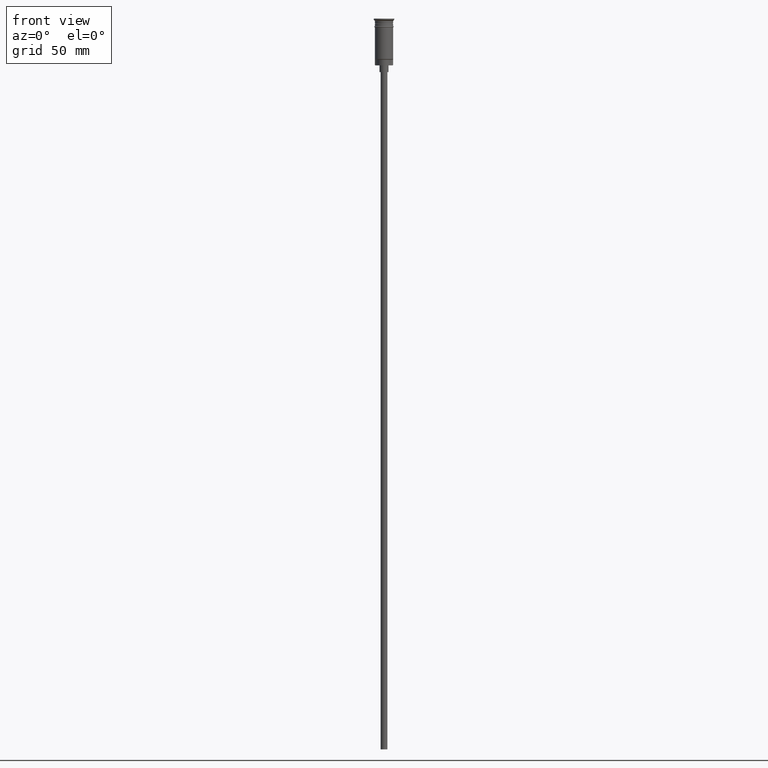
[diagram: clean part render]
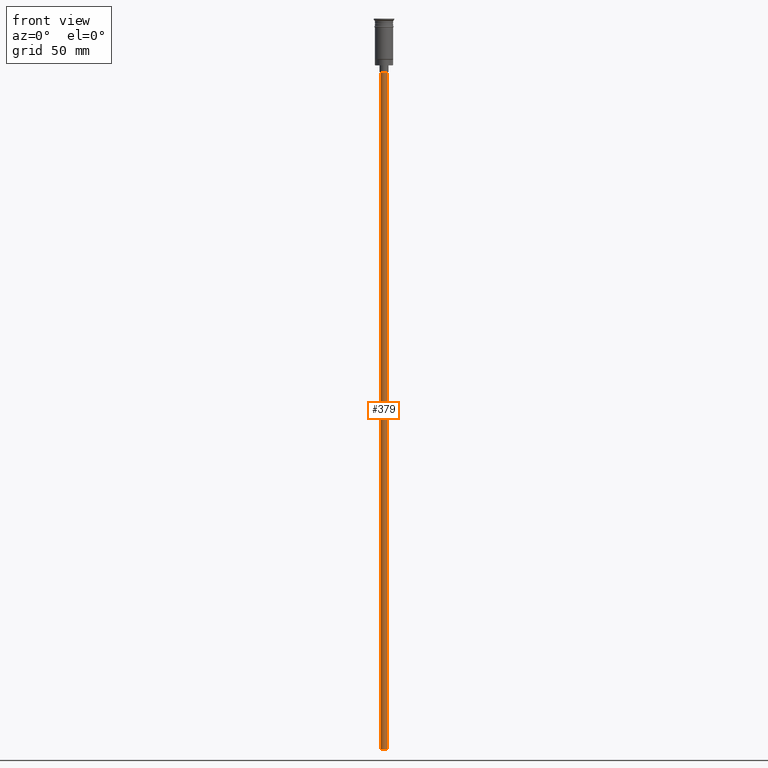
[diagram: same view with one face highlighted and labeled with its STEP entity id]
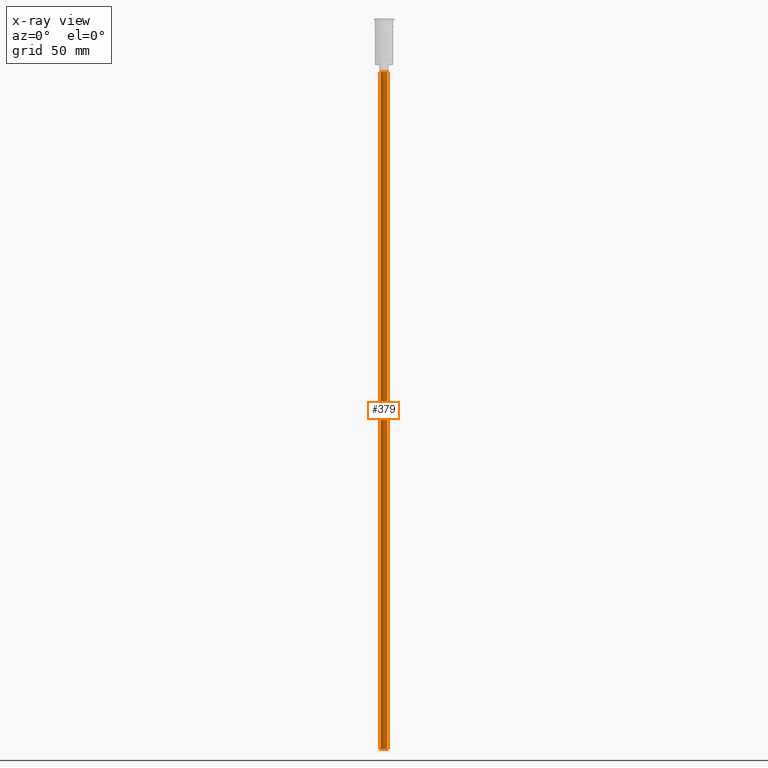
[diagram: x-ray of the same camera — body ghosted, the highlighted face saturated]
A machine part, front view. The second image highlights one B-rep face of the part: STEP entity #379.
The next image is the same camera in x-ray: the body ghosted, the highlighted face saturated — about 0% of this face is hidden behind the body in this view.
In plain terms, the highlighted cylindrical surface (edge-blend (fillet) strip) has radius 1.5 mm, axis along (-0, -0, 1).
Its self-contained STEP definition (entity closure, byte-faithful):
#15 = AXIS2_PLACEMENT_3D ( 'NONE', #1073, #227, #835 ) ;
#28 = ORIENTED_EDGE ( 'NONE', *, *, #1590, .F. ) ;
#57 = VERTEX_POINT ( 'NONE', #761 ) ;
#78 = VECTOR ( 'NONE', #1116, 1000.000000000000000 ) ;
#107 = CARTESIAN_POINT ( 'NONE',  ( 1.500000000000000222, 0.000000000000000000, -320.5000000000000000 ) ) ;
#195 = AXIS2_PLACEMENT_3D ( 'NONE', #589, #1192, #346 ) ;
#227 = DIRECTION ( 'NONE',  ( 0.000000000000000000, 0.000000000000000000, -1.000000000000000000 ) ) ;
#244 = VERTEX_POINT ( 'NONE', #310 ) ;
#310 = CARTESIAN_POINT ( 'NONE',  ( 1.500000000000000222, 0.000000000000000000, -23.49999999999999645 ) ) ;
#326 = CARTESIAN_POINT ( 'NONE',  ( -1.500000000000000222, 1.836970198721030181E-16, -320.5000000000000000 ) ) ;
#327 = EDGE_CURVE ( 'NONE', #57, #244, #965, .T. ) ;
#346 = DIRECTION ( 'NONE',  ( 1.000000000000000000, 0.000000000000000000, 0.000000000000000000 ) ) ;
#351 = CARTESIAN_POINT ( 'NONE',  ( 0.000000000000000000, 0.000000000000000000, -320.5000000000000000 ) ) ;
#379 = ADVANCED_FACE ( 'NONE', ( #1549 ), #446, .T. ) ;
#393 = EDGE_CURVE ( 'NONE', #244, #1007, #1176, .T. ) ;
#433 = VECTOR ( 'NONE', #711, 1000.000000000000000 ) ;
#446 = CYLINDRICAL_SURFACE ( 'NONE', #195, 1.500000000000000222 ) ;
#526 = LINE ( 'NONE', #1016, #78 ) ;
#589 = CARTESIAN_POINT ( 'NONE',  ( 0.000000000000000000, 0.000000000000000000, -320.5000000000000000 ) ) ;
#629 = ORIENTED_EDGE ( 'NONE', *, *, #1306, .F. ) ;
#711 = DIRECTION ( 'NONE',  ( -0.000000000000000000, -0.000000000000000000, 1.000000000000000000 ) ) ;
#761 = CARTESIAN_POINT ( 'NONE',  ( 1.500000000000000222, 0.000000000000000000, -320.5000000000000000 ) ) ;
#769 = CARTESIAN_POINT ( 'NONE',  ( -1.500000000000000222, 1.836970198721030181E-16, -23.49999999999999645 ) ) ;
#835 = DIRECTION ( 'NONE',  ( -1.000000000000000000, 0.000000000000000000, 0.000000000000000000 ) ) ;
#881 = CIRCLE ( 'NONE', #1077, 1.500000000000000222 ) ;
#965 = LINE ( 'NONE', #107, #433 ) ;
#975 = DIRECTION ( 'NONE',  ( -1.000000000000000000, 0.000000000000000000, 0.000000000000000000 ) ) ;
#1007 = VERTEX_POINT ( 'NONE', #769 ) ;
#1016 = CARTESIAN_POINT ( 'NONE',  ( -1.500000000000000222, 1.836970198721030181E-16, -320.5000000000000000 ) ) ;
#1060 = ORIENTED_EDGE ( 'NONE', *, *, #393, .T. ) ;
#1073 = CARTESIAN_POINT ( 'NONE',  ( 0.000000000000000000, 0.000000000000000000, -23.49999999999999645 ) ) ;
#1077 = AXIS2_PLACEMENT_3D ( 'NONE', #351, #1084, #975 ) ;
#1084 = DIRECTION ( 'NONE',  ( 0.000000000000000000, 0.000000000000000000, -1.000000000000000000 ) ) ;
#1093 = ORIENTED_EDGE ( 'NONE', *, *, #327, .T. ) ;
#1116 = DIRECTION ( 'NONE',  ( -0.000000000000000000, -0.000000000000000000, 1.000000000000000000 ) ) ;
#1176 = CIRCLE ( 'NONE', #15, 1.500000000000000222 ) ;
#1192 = DIRECTION ( 'NONE',  ( -0.000000000000000000, -0.000000000000000000, 1.000000000000000000 ) ) ;
#1274 = VERTEX_POINT ( 'NONE', #326 ) ;
#1306 = EDGE_CURVE ( 'NONE', #57, #1274, #881, .T. ) ;
#1549 = FACE_OUTER_BOUND ( 'NONE', #1560, .T. ) ;
#1560 = EDGE_LOOP ( 'NONE', ( #28, #629, #1093, #1060 ) ) ;
#1590 = EDGE_CURVE ( 'NONE', #1274, #1007, #526, .T. ) ;